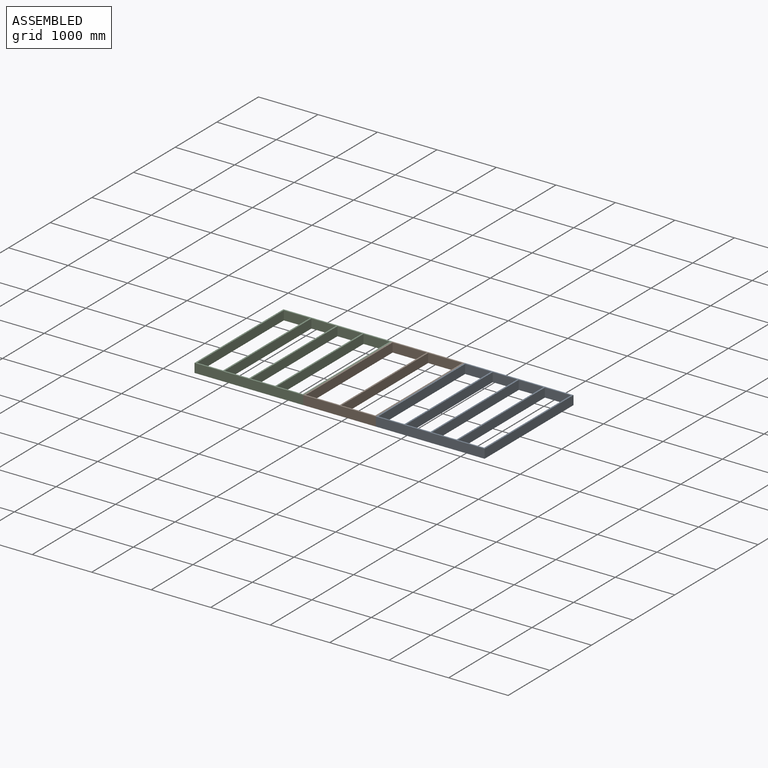
[diagram: assembled view]
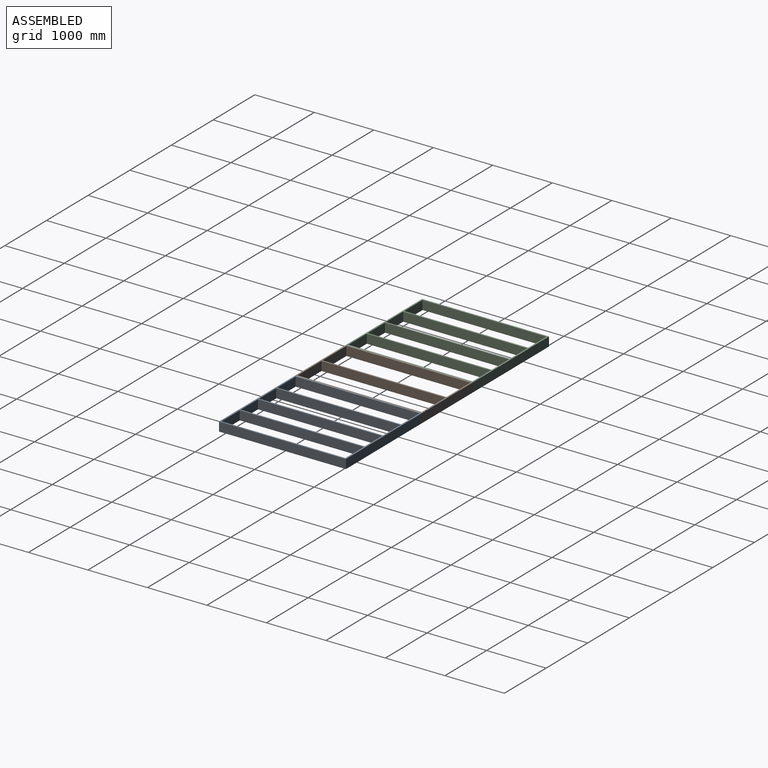
[diagram: assembled view, second angle]
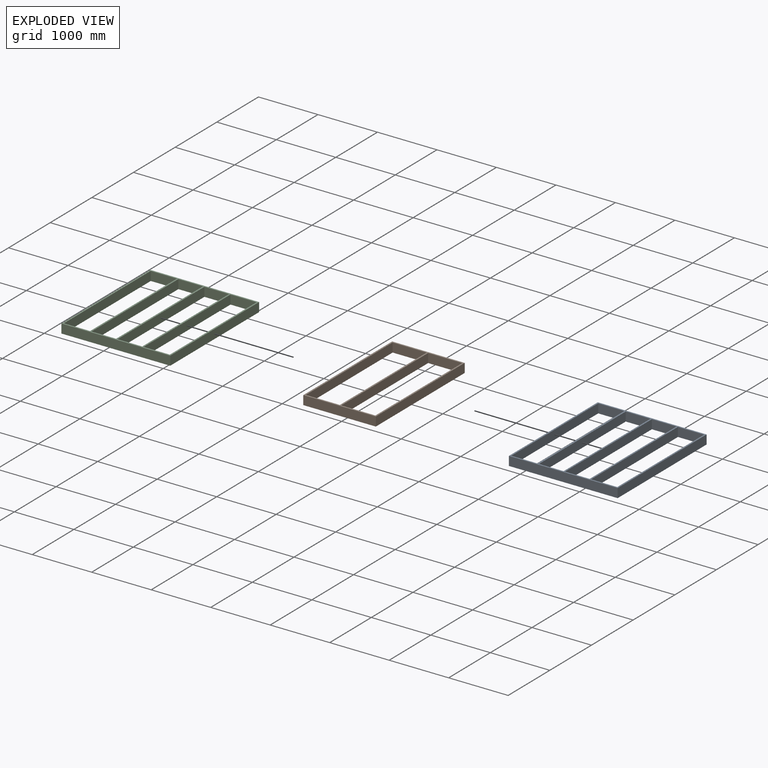
[diagram: exploded view]
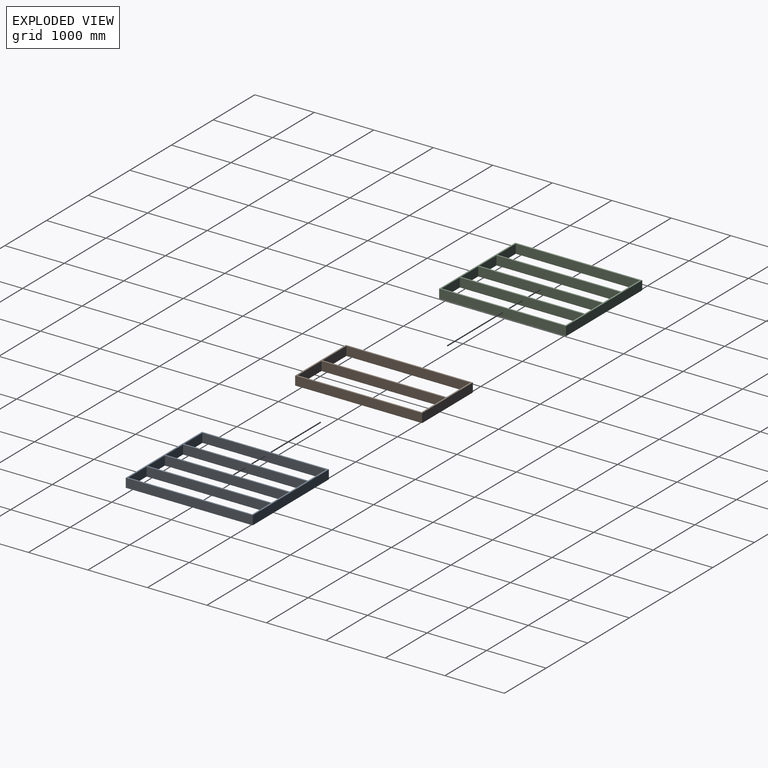
[diagram: exploded view, second angle]
ASSEMBLY  parts=3 mates=2
PART A: 22 faces, bbox 1828.8x2133.6x152.4 mm
  f0: plane 2133.6x152.4mm, normal (1,0,0), area 325160.6mm2, adj f1,f19,f20,f21
  f1: plane 1828.8x152.4mm, normal (0,1,0), area 278709.1mm2, adj f0,f2,f20,f21
  f2: plane 2133.6x152.4mm, normal (-1,0,0), area 325160.6mm2, adj f1,f19,f20,f21
  f3: plane 2082.8x152.4mm, normal (-1,0,0), area 317418.7mm2, adj f4,f15,f20,f21
  f4: plane 412.75x152.4mm, normal (0,1,0), area 62903.1mm2, adj f3,f5,f20,f21
  f5: plane 2082.8x152.4mm, normal (1,0,0), area 317418.7mm2, adj f4,f15,f20,f21
  f6: plane 2082.8x152.4mm, normal (1,0,0), area 317418.7mm2, adj f7,f16,f20,f21
  f7: plane 412.75x152.4mm, normal (0,-1,0), area 62903.1mm2, adj f6,f8,f20,f21
  f8: plane 2082.8x152.4mm, normal (-1,0,0), area 317418.7mm2, adj f7,f16,f20,f21
  f9: plane 2082.8x152.4mm, normal (1,0,0), area 317418.7mm2, adj f10,f17,f20,f21
  f10: plane 438.15x152.4mm, normal (0,-1,0), area 66774.1mm2, adj f9,f11,f20,f21
  f11: plane 2082.8x152.4mm, normal (-1,0,0), area 317418.7mm2, adj f10,f17,f20,f21
  f12: plane 2082.8x152.4mm, normal (-1,0,0), area 317418.7mm2, adj f13,f18,f20,f21
  f13: plane 438.15x152.4mm, normal (0,1,0), area 66774.1mm2, adj f12,f14,f20,f21
  f14: plane 2082.8x152.4mm, normal (1,0,0), area 317418.7mm2, adj f13,f18,f20,f21
  f15: plane 412.75x152.4mm, normal (0,-1,0), area 62903.1mm2, adj f3,f5,f20,f21
  f16: plane 412.75x152.4mm, normal (0,1,0), area 62903.1mm2, adj f6,f8,f20,f21
  f17: plane 438.15x152.4mm, normal (0,1,0), area 66774.1mm2, adj f9,f11,f20,f21
  f18: plane 438.15x152.4mm, normal (0,-1,0), area 66774.1mm2, adj f12,f14,f20,f21
  f19: plane 1828.8x152.4mm, normal (0,-1,0), area 278709.1mm2, adj f0,f2,f20,f21
  f20: plane 2133.6x1828.8mm, normal (0,0,1), area 357418.6mm2, adj f0,f1,f2,f3,f4,f5,f6,f7
  f21: plane 2133.6x1828.8mm, normal (0,0,-1), area 357418.6mm2, adj f0,f1,f2,f3,f4,f5,f6,f7
PART B: 14 faces, bbox 1219.2x2133.6x152.4 mm
  f0: plane 2133.6x152.4mm, normal (1,0,0), area 325160.6mm2, adj f1,f11,f12,f13
  f1: plane 1219.2x152.4mm, normal (0,1,0), area 185806.1mm2, adj f0,f2,f12,f13
  f2: plane 2133.6x152.4mm, normal (-1,0,0), area 325160.6mm2, adj f1,f11,f12,f13
  f3: plane 2082.8x152.4mm, normal (1,0,0), area 317418.7mm2, adj f4,f9,f12,f13
  f4: plane 571.5x152.4mm, normal (0,-1,0), area 87096.6mm2, adj f3,f5,f12,f13
  f5: plane 2082.8x152.4mm, normal (-1,0,0), area 317418.7mm2, adj f4,f9,f12,f13
  f6: plane 2082.8x152.4mm, normal (-1,0,0), area 317418.7mm2, adj f7,f10,f12,f13
  f7: plane 571.5x152.4mm, normal (0,1,0), area 87096.6mm2, adj f6,f8,f12,f13
  f8: plane 2082.8x152.4mm, normal (1,0,0), area 317418.7mm2, adj f7,f10,f12,f13
  f9: plane 571.5x152.4mm, normal (0,1,0), area 87096.6mm2, adj f3,f5,f12,f13
  f10: plane 571.5x152.4mm, normal (0,-1,0), area 87096.6mm2, adj f6,f8,f12,f13
  f11: plane 1219.2x152.4mm, normal (0,-1,0), area 185806.1mm2, adj f0,f2,f12,f13
  f12: plane 2133.6x1219.2mm, normal (0,0,1), area 220644.7mm2, adj f0,f1,f2,f3,f4,f5,f6,f7
  f13: plane 2133.6x1219.2mm, normal (0,0,-1), area 220644.7mm2, adj f0,f1,f2,f3,f4,f5,f6,f7
PART C: same geometry as A
PLACE A t=(582.48,14.36,-76.2)mm
PLACE B t=(-636.72,14.36,-76.2)mm
PLACE C t=(-2465.52,14.36,-76.2)mm
MATE fastened A.f2 <-> B.f0  axis (-1,0,0) through (582.48,1055.76,0)mm
MATE fastened B.f2 <-> C.f0  axis (-1,0,0) through (-636.72,1055.76,0)mm
